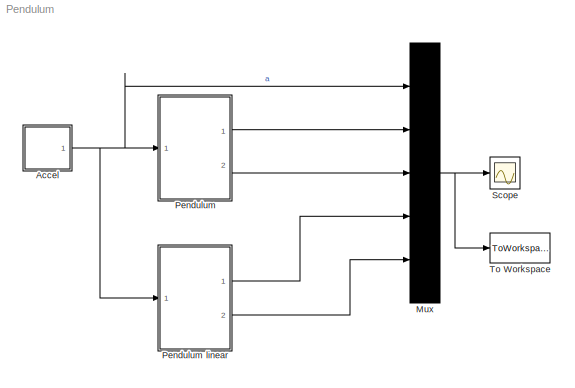
MODEL Pendulum
KIND model
CONFIG PreLoadFcn = Pendulum
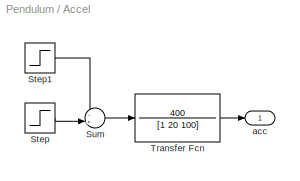
BLOCK [SubSystem] Accel
  Ports = [0, 1]
  RequestExecContextInheritance = off
  SID = 6
BLOCK [Step] Accel/Step
  SID = 1
  SampleTime = 0
  Time = 0.1
BLOCK [Step] Accel/Step1
  SID = 2
  SampleTime = 0
BLOCK [Sum] Accel/Sum
  IconShape = round
  InputSameDT = off
  Inputs = -+|
  OutDataTypeStr = Inherit: Inherit via internal rule
  Ports = [2, 1]
  SID = 3
  SaturateOnIntegerOverflow = off
BLOCK [TransferFcn] Accel/Transfer Fcn
  Denominator = [1 20 100]
  Numerator = 400
  SID = 4
BLOCK [Outport] Accel/acc
  IconDisplay = Port number
  SID = 7
BLOCK [Mux] Mux
  Inputs = 5
  Ports = [5, 1]
  SID = 12
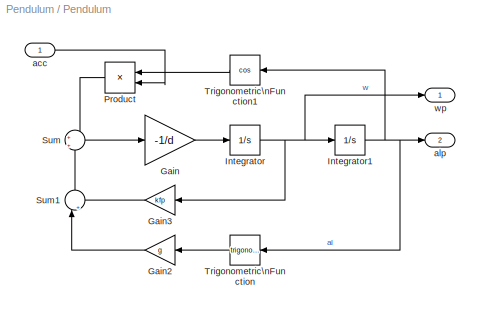
BLOCK [SubSystem] Pendulum
  Ports = [1, 2]
  RequestExecContextInheritance = off
  SID = 22
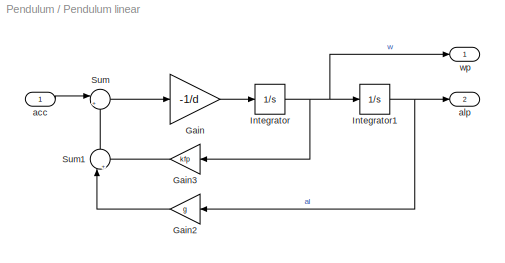
BLOCK [SubSystem] Pendulum linear
  Ports = [1, 2]
  RequestExecContextInheritance = off
  SID = 26
BLOCK [Gain] Pendulum linear/Gain
  Gain = -1/d
  OutDataTypeStr = Inherit: Inherit via internal rule
  ParamDataTypeStr = Inherit: Inherit via internal rule
  SID = 28
  SaturateOnIntegerOverflow = off
BLOCK [Gain] Pendulum linear/Gain2
  Gain = g
  OutDataTypeStr = Inherit: Inherit via internal rule
  ParamDataTypeStr = Inherit: Inherit via internal rule
  SID = 29
  SaturateOnIntegerOverflow = off
BLOCK [Gain] Pendulum linear/Gain3
  Gain = kfp
  OutDataTypeStr = Inherit: Inherit via internal rule
  ParamDataTypeStr = Inherit: Inherit via internal rule
  SID = 30
  SaturateOnIntegerOverflow = off
BLOCK [Integrator] Pendulum linear/Integrator
  Ports = [1, 1]
  SID = 31
BLOCK [Integrator] Pendulum linear/Integrator1
  Ports = [1, 1]
  SID = 32
BLOCK [Sum] Pendulum linear/Sum
  IconShape = round
  InputSameDT = off
  Inputs = |++
  OutDataTypeStr = Inherit: Inherit via internal rule
  Ports = [2, 1]
  SID = 34
  SaturateOnIntegerOverflow = off
BLOCK [Sum] Pendulum linear/Sum1
  IconShape = round
  InputSameDT = off
  Inputs = |++
  OutDataTypeStr = Inherit: Inherit via internal rule
  Ports = [2, 1]
  SID = 35
  SaturateOnIntegerOverflow = off
BLOCK [Inport] Pendulum linear/acc
  IconDisplay = Port number
  SID = 27
BLOCK [Outport] Pendulum linear/alp
  IconDisplay = Port number
  Port = 2
  SID = 39
BLOCK [Outport] Pendulum linear/wp
  IconDisplay = Port number
  SID = 38
BLOCK [Gain] Pendulum/Gain
  Gain = -1/d
  OutDataTypeStr = Inherit: Inherit via internal rule
  ParamDataTypeStr = Inherit: Inherit via internal rule
  SID = 10
  SaturateOnIntegerOverflow = off
BLOCK [Gain] Pendulum/Gain2
  Gain = g
  OutDataTypeStr = Inherit: Inherit via internal rule
  ParamDataTypeStr = Inherit: Inherit via internal rule
  SID = 18
  SaturateOnIntegerOverflow = off
BLOCK [Gain] Pendulum/Gain3
  Gain = kfp
  OutDataTypeStr = Inherit: Inherit via internal rule
  ParamDataTypeStr = Inherit: Inherit via internal rule
  SID = 20
  SaturateOnIntegerOverflow = off
BLOCK [Integrator] Pendulum/Integrator
  Ports = [1, 1]
  SID = 8
BLOCK [Integrator] Pendulum/Integrator1
  Ports = [1, 1]
  SID = 9
BLOCK [Product] Pendulum/Product
  InputSameDT = off
  OutDataTypeStr = Inherit: Inherit via internal rule
  Ports = [2, 1]
  SID = 17
  SaturateOnIntegerOverflow = off
BLOCK [Sum] Pendulum/Sum
  IconShape = round
  InputSameDT = off
  Inputs = +|+
  OutDataTypeStr = Inherit: Inherit via internal rule
  Ports = [2, 1]
  SID = 19
  SaturateOnIntegerOverflow = off
BLOCK [Sum] Pendulum/Sum1
  IconShape = round
  InputSameDT = off
  Inputs = |++
  OutDataTypeStr = Inherit: Inherit via internal rule
  Ports = [2, 1]
  SID = 21
  SaturateOnIntegerOverflow = off
BLOCK [Trigonometry] Pendulum/Trigonometric\nFunction
  Ports = [1, 1]
  SID = 11
BLOCK [Trigonometry] Pendulum/Trigonometric\nFunction1
  Operator = cos
  Ports = [1, 1]
  SID = 14
BLOCK [Inport] Pendulum/acc
  IconDisplay = Port number
  SID = 23
BLOCK [Outport] Pendulum/alp
  IconDisplay = Port number
  Port = 2
  SID = 25
BLOCK [Outport] Pendulum/wp
  IconDisplay = Port number
  SID = 24
BLOCK [Scope] Scope
  DataFormat = StructureWithTime
  Floating = off
  NumInputPorts = 1
  Ports = [1]
  SID = 5
  SampleTime = 0
  ShowLegends = off
  TimeRange = 10
  YMax = 4
  YMin = -2
BLOCK [ToWorkspace] To Workspace
  MaxDataPoints = inf
  Ports = [1]
  SID = 42
  SampleTime = -1
  VariableName = pdident
LINE Accel/Step1:1 -> Accel/Sum:1
LINE Accel/Step:1 -> Accel/Sum:2
LINE Accel/Sum:1 -> Accel/Transfer Fcn:1
LINE Accel/Transfer Fcn:1 -> Accel/acc:1
NET Accel:1 -> Mux:1, Pendulum linear:1, Pendulum:1
NET Mux:1 -> Scope:1, To Workspace:1
LINE Pendulum linear/Gain2:1 -> Pendulum linear/Sum1:1
LINE Pendulum linear/Gain3:1 -> Pendulum linear/Sum1:2
LINE Pendulum linear/Gain:1 -> Pendulum linear/Integrator:1
NET Pendulum linear/Integrator1:1 -> Pendulum linear/Gain2:1, Pendulum linear/alp:1
NET Pendulum linear/Integrator:1 -> Pendulum linear/Gain3:1, Pendulum linear/Integrator1:1, Pendulum linear/wp:1
LINE Pendulum linear/Sum1:1 -> Pendulum linear/Sum:2
LINE Pendulum linear/Sum:1 -> Pendulum linear/Gain:1
LINE Pendulum linear/acc:1 -> Pendulum linear/Sum:1
LINE Pendulum linear:1 -> Mux:4
LINE Pendulum linear:2 -> Mux:5
LINE Pendulum/Gain2:1 -> Pendulum/Sum1:1
LINE Pendulum/Gain3:1 -> Pendulum/Sum1:2
LINE Pendulum/Gain:1 -> Pendulum/Integrator:1
NET Pendulum/Integrator1:1 -> Pendulum/Trigonometric\nFunction1:1, Pendulum/Trigonometric\nFunction:1, Pendulum/alp:1
NET Pendulum/Integrator:1 -> Pendulum/Gain3:1, Pendulum/Integrator1:1, Pendulum/wp:1
LINE Pendulum/Product:1 -> Pendulum/Sum:1
LINE Pendulum/Sum1:1 -> Pendulum/Sum:2
LINE Pendulum/Sum:1 -> Pendulum/Gain:1
LINE Pendulum/Trigonometric\nFunction1:1 -> Pendulum/Product:1
LINE Pendulum/Trigonometric\nFunction:1 -> Pendulum/Gain2:1
LINE Pendulum/acc:1 -> Pendulum/Product:2
LINE Pendulum:1 -> Mux:2
LINE Pendulum:2 -> Mux:3
note: NET lines group one-source signal fan-out (src -> all destinations, sorted); 1:1 wires keep LINE
